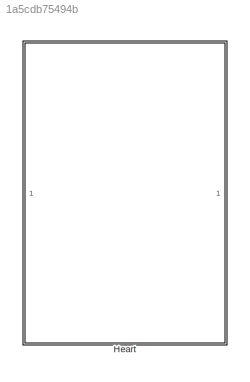
MODEL slx_1a5cdb75494b
KIND model
CONFIG AbsTol = auto
CONFIG EnableMultiTasking = off
CONFIG FixedStep = auto
CONFIG MaxStep = auto
CONFIG MinStep = auto
CONFIG RelTol = 1e-3
CONFIG SampleTimeConstraint = Unconstrained
CONFIG SolverName = VariableStepAuto
CONFIG StartTime = 0.0
CONFIG StopTime = 10.0
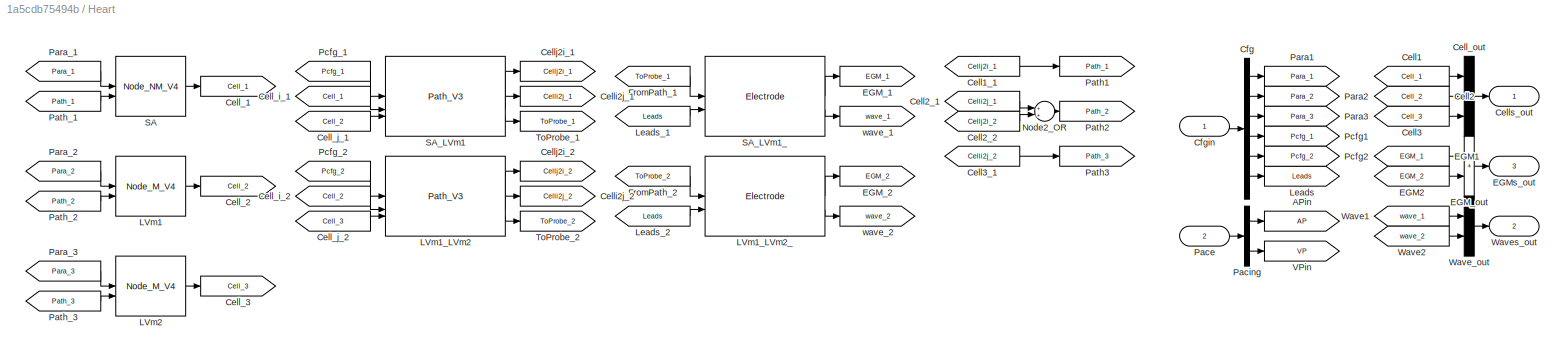
BLOCK [SubSystem] Heart
BLOCK [Goto] Heart/APin
  GotoTag = AP
BLOCK [From] Heart/Cell1
  GotoTag = Cell_1
BLOCK [From] Heart/Cell1_1
  GotoTag = Cellj2i_1
BLOCK [From] Heart/Cell2
  GotoTag = Cell_2
BLOCK [From] Heart/Cell2_1
  GotoTag = Celli2j_1
BLOCK [From] Heart/Cell2_2
  GotoTag = Cellj2i_2
BLOCK [From] Heart/Cell3
  GotoTag = Cell_3
BLOCK [From] Heart/Cell3_1
  GotoTag = Celli2j_2
BLOCK [Goto] Heart/Cell_1
  GotoTag = Cell_1
BLOCK [Goto] Heart/Cell_2
  GotoTag = Cell_2
BLOCK [Goto] Heart/Cell_3
  GotoTag = Cell_3
BLOCK [From] Heart/Cell_i_1
  GotoTag = Cell_1
BLOCK [From] Heart/Cell_i_2
  GotoTag = Cell_2
BLOCK [From] Heart/Cell_j_1
  GotoTag = Cell_2
BLOCK [From] Heart/Cell_j_2
  GotoTag = Cell_3
BLOCK [Mux] Heart/Cell_out
  DisplayOption = bar
  Inputs = 3
BLOCK [Goto] Heart/Celli2j_1
  GotoTag = Celli2j_1
BLOCK [Goto] Heart/Celli2j_2
  GotoTag = Celli2j_2
BLOCK [Goto] Heart/Cellj2i_1
  GotoTag = Cellj2i_1
BLOCK [Goto] Heart/Cellj2i_2
  GotoTag = Cellj2i_2
BLOCK [Outport] Heart/Cells_out
BLOCK [Demux] Heart/Cfg
  Outputs = [23,25,25,11,11,28]
BLOCK [Inport] Heart/Cfgin
BLOCK [From] Heart/EGM1
  GotoTag = EGM_1
BLOCK [From] Heart/EGM2
  GotoTag = EGM_2
BLOCK [Goto] Heart/EGM_1
  GotoTag = EGM_1
BLOCK [Goto] Heart/EGM_2
  GotoTag = EGM_2
BLOCK [Sum] Heart/EGM_out
  IconShape = rectangular
  Inputs = 2
BLOCK [Outport] Heart/EGMs_out
  Port = 3
BLOCK [From] Heart/FromPath_1
  GotoTag = ToProbe_1
BLOCK [From] Heart/FromPath_2
  GotoTag = ToProbe_2
BLOCK [Reference] Heart/LVm1  REF=Libs/Node_M_V4
  SourceBlock = Libs/Node_M_V4
  SourceType = SubSystem
BLOCK [Reference] Heart/LVm1_LVm2  REF=Libs/Path_V3
  SourceBlock = Libs/Path_V3
  SourceType = SubSystem
BLOCK [Reference] Heart/LVm1_LVm2_  REF=Libs/Electrode
  SourceBlock = Libs/Electrode
  SourceType = SubSystem
BLOCK [Reference] Heart/LVm2  REF=Libs/Node_M_V4
  SourceBlock = Libs/Node_M_V4
  SourceType = SubSystem
BLOCK [Goto] Heart/Leads
  GotoTag = Leads
BLOCK [From] Heart/Leads_1
  GotoTag = Leads
BLOCK [From] Heart/Leads_2
  GotoTag = Leads
BLOCK [Sum] Heart/Node2_OR
  Inputs = 2
BLOCK [Inport] Heart/Pace
  Port = 2
BLOCK [Demux] Heart/Pacing
  Outputs = 2
BLOCK [Goto] Heart/Para1
  GotoTag = Para_1
BLOCK [Goto] Heart/Para2
  GotoTag = Para_2
BLOCK [Goto] Heart/Para3
  GotoTag = Para_3
BLOCK [From] Heart/Para_1
  GotoTag = Para_1
BLOCK [From] Heart/Para_2
  GotoTag = Para_2
BLOCK [From] Heart/Para_3
  GotoTag = Para_3
BLOCK [Goto] Heart/Path1
  GotoTag = Path_1
BLOCK [Goto] Heart/Path2
  GotoTag = Path_2
BLOCK [Goto] Heart/Path3
  GotoTag = Path_3
BLOCK [From] Heart/Path_1
  GotoTag = Path_1
BLOCK [From] Heart/Path_2
  GotoTag = Path_2
BLOCK [From] Heart/Path_3
  GotoTag = Path_3
BLOCK [Goto] Heart/Pcfg1
  GotoTag = Pcfg_1
BLOCK [Goto] Heart/Pcfg2
  GotoTag = Pcfg_2
BLOCK [From] Heart/Pcfg_1
  GotoTag = Pcfg_1
BLOCK [From] Heart/Pcfg_2
  GotoTag = Pcfg_2
BLOCK [Reference] Heart/SA  REF=Libs/Node_NM_V4
  SourceBlock = Libs/Node_NM_V4
  SourceType = SubSystem
BLOCK [Reference] Heart/SA_LVm1  REF=Libs/Path_V3
  SourceBlock = Libs/Path_V3
  SourceType = SubSystem
BLOCK [Reference] Heart/SA_LVm1_  REF=Libs/Electrode
  SourceBlock = Libs/Electrode
  SourceType = SubSystem
BLOCK [Goto] Heart/ToProbe_1
  GotoTag = ToProbe_1
BLOCK [Goto] Heart/ToProbe_2
  GotoTag = ToProbe_2
BLOCK [Goto] Heart/VPin
  GotoTag = VP
BLOCK [From] Heart/Wave1
  GotoTag = wave_1
BLOCK [From] Heart/Wave2
  GotoTag = wave_2
BLOCK [Mux] Heart/Wave_out
  DisplayOption = bar
  Inputs = 2
BLOCK [Outport] Heart/Waves_out
  Port = 2
BLOCK [Goto] Heart/wave_1
  GotoTag = wave_1
BLOCK [Goto] Heart/wave_2
  GotoTag = wave_2
LINE Heart/Cell1:1 -> Heart/Cell_out:1
LINE Heart/Cell1_1:1 -> Heart/Path1:1
LINE Heart/Cell2:1 -> Heart/Cell_out:2
LINE Heart/Cell2_1:1 -> Heart/Node2_OR:1
LINE Heart/Cell2_2:1 -> Heart/Node2_OR:2
LINE Heart/Cell3:1 -> Heart/Cell_out:3
LINE Heart/Cell3_1:1 -> Heart/Path3:1
LINE Heart/Cell_i_1:1 -> Heart/SA_LVm1:2
LINE Heart/Cell_i_2:1 -> Heart/LVm1_LVm2:2
LINE Heart/Cell_j_1:1 -> Heart/SA_LVm1:3
LINE Heart/Cell_j_2:1 -> Heart/LVm1_LVm2:3
LINE Heart/Cell_out:1 -> Heart/Cells_out:1
LINE Heart/Cfg:1 -> Heart/Para1:1
LINE Heart/Cfg:2 -> Heart/Para2:1
LINE Heart/Cfg:3 -> Heart/Para3:1
LINE Heart/Cfg:4 -> Heart/Pcfg1:1
LINE Heart/Cfg:5 -> Heart/Pcfg2:1
LINE Heart/Cfg:6 -> Heart/Leads:1
LINE Heart/Cfgin:1 -> Heart/Cfg:1
LINE Heart/EGM1:1 -> Heart/EGM_out:1
LINE Heart/EGM2:1 -> Heart/EGM_out:2
LINE Heart/EGM_out:1 -> Heart/EGMs_out:1
LINE Heart/FromPath_1:1 -> Heart/SA_LVm1_:1
LINE Heart/FromPath_2:1 -> Heart/LVm1_LVm2_:1
LINE Heart/LVm1:1 -> Heart/Cell_2:1
LINE Heart/LVm1_LVm2:1 -> Heart/Cellj2i_2:1
LINE Heart/LVm1_LVm2:2 -> Heart/Celli2j_2:1
LINE Heart/LVm1_LVm2:3 -> Heart/ToProbe_2:1
LINE Heart/LVm1_LVm2_:1 -> Heart/EGM_2:1
LINE Heart/LVm1_LVm2_:2 -> Heart/wave_2:1
LINE Heart/LVm2:1 -> Heart/Cell_3:1
LINE Heart/Leads_1:1 -> Heart/SA_LVm1_:2
LINE Heart/Leads_2:1 -> Heart/LVm1_LVm2_:2
LINE Heart/Node2_OR:1 -> Heart/Path2:1
LINE Heart/Pace:1 -> Heart/Pacing:1
LINE Heart/Pacing:1 -> Heart/APin:1
LINE Heart/Pacing:2 -> Heart/VPin:1
LINE Heart/Para_1:1 -> Heart/SA:1
LINE Heart/Para_2:1 -> Heart/LVm1:1
LINE Heart/Para_3:1 -> Heart/LVm2:1
LINE Heart/Path_1:1 -> Heart/SA:2
LINE Heart/Path_2:1 -> Heart/LVm1:2
LINE Heart/Path_3:1 -> Heart/LVm2:2
LINE Heart/Pcfg_1:1 -> Heart/SA_LVm1:1
LINE Heart/Pcfg_2:1 -> Heart/LVm1_LVm2:1
LINE Heart/SA:1 -> Heart/Cell_1:1
LINE Heart/SA_LVm1:1 -> Heart/Cellj2i_1:1
LINE Heart/SA_LVm1:2 -> Heart/Celli2j_1:1
LINE Heart/SA_LVm1:3 -> Heart/ToProbe_1:1
LINE Heart/SA_LVm1_:1 -> Heart/EGM_1:1
LINE Heart/SA_LVm1_:2 -> Heart/wave_1:1
LINE Heart/Wave1:1 -> Heart/Wave_out:1
LINE Heart/Wave2:1 -> Heart/Wave_out:2
LINE Heart/Wave_out:1 -> Heart/Waves_out:1
